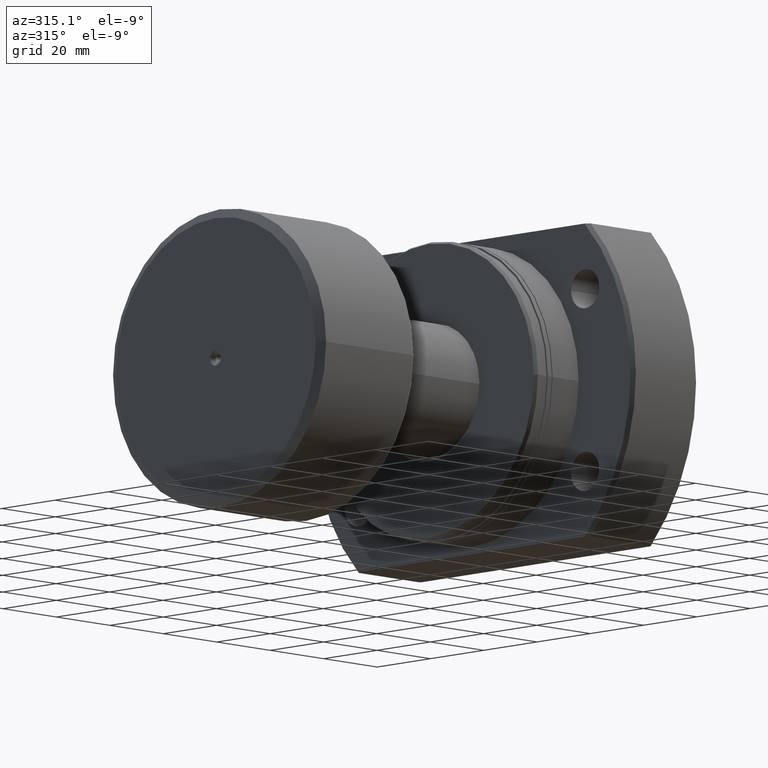
[diagram: clean part render]
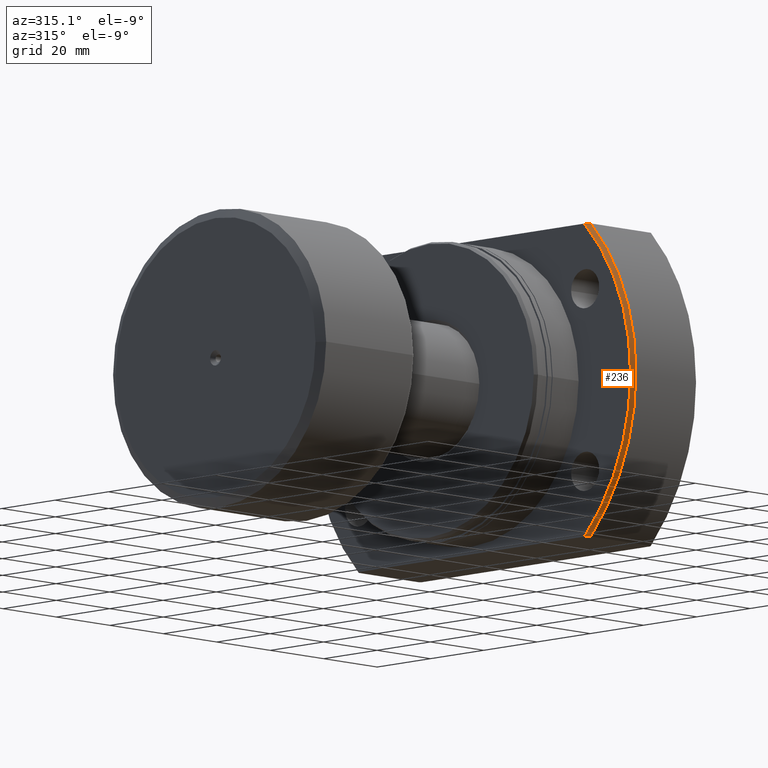
[diagram: same view with one face highlighted and labeled with its STEP entity id]
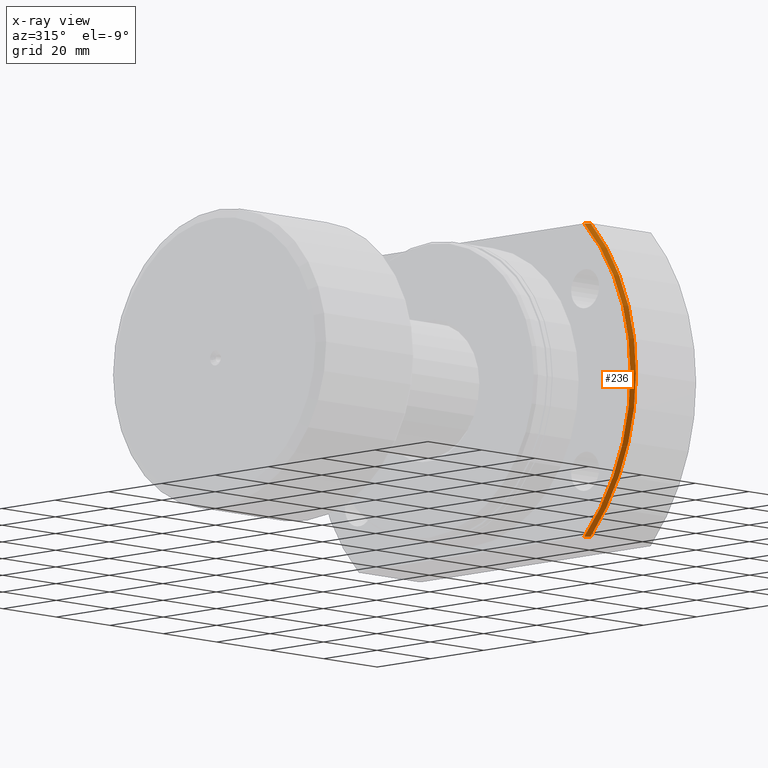
[diagram: x-ray of the same camera — body ghosted, the highlighted face saturated]
A machine part, auxiliary view. The second image highlights one B-rep face of the part: STEP entity #236.
The next image is the same camera in x-ray: the body ghosted, the highlighted face saturated — about 0% of this face is hidden behind the body in this view.
In plain terms, the highlighted conical surface has half-angle 45 deg.
Its self-contained STEP definition (entity closure, byte-faithful):
#44 = CARTESIAN_POINT ( 'NONE',  ( 16.53144698496875975, -42.61350898229063233, 42.00000000000000711 ) ) ;
#133 = DIRECTION ( 'NONE',  ( 1.000000000000000000, 4.782824563834189405E-17, -0.000000000000000000 ) ) ;
#213 = ORIENTED_EDGE ( 'NONE', *, *, #466, .T. ) ;
#216 = CONICAL_SURFACE ( 'NONE', #972, 59.49999999999994316, 0.7853981633974430610 ) ;
#236 = ADVANCED_FACE ( 'NONE', ( #1710 ), #216, .T. ) ;
#286 = CARTESIAN_POINT ( 'NONE',  ( 17.19999999999998153, -43.54595273960524793, -41.99999999999999289 ) ) ;
#363 = DIRECTION ( 'NONE',  ( 1.000000000000000000, 4.782824563834189405E-17, -0.000000000000000000 ) ) ;
#404 = CARTESIAN_POINT ( 'NONE',  ( 16.20000000000000284, 7.748175793411387157E-16, 0.000000000000000000 ) ) ;
#466 = EDGE_CURVE ( 'NONE', #1861, #597, #1996, .T. ) ;
#524 = CARTESIAN_POINT ( 'NONE',  ( 16.20000000000000639, -42.14558102577294108, 42.00000000000000711 ) ) ;
#597 = VERTEX_POINT ( 'NONE', #1368 ) ;
#616 = DIRECTION ( 'NONE',  ( -5.831003280594314730E-17, 1.000000000000000000, 0.000000000000000000 ) ) ;
#863 = CARTESIAN_POINT ( 'NONE',  ( 17.19999999999998508, 8.226458249794798825E-16, 0.000000000000000000 ) ) ;
#972 = AXIS2_PLACEMENT_3D ( 'NONE', #404, #133, #616 ) ;
#1062 = CARTESIAN_POINT ( 'NONE',  ( 16.53144698496875975, -42.61350898229062523, -42.00000000000000711 ) ) ;
#1070 = DIRECTION ( 'NONE',  ( -5.734623061080362048E-17, 1.000000000000000000, 0.000000000000000000 ) ) ;
#1137 = AXIS2_PLACEMENT_3D ( 'NONE', #3163, #1903, #2112 ) ;
#1342 = B_SPLINE_CURVE_WITH_KNOTS ( 'NONE', 3,
 ( #3103, #1062, #1746, #1763 ),
 .UNSPECIFIED., .F., .F.,
 ( 4, 4 ),
 ( 0.1630913217281462491, 0.1648252527028309933 ),
 .UNSPECIFIED. ) ;
#1368 = CARTESIAN_POINT ( 'NONE',  ( 16.20000000000000639, -42.14558102577294108, -42.00000000000000711 ) ) ;
#1441 = VERTEX_POINT ( 'NONE', #286 ) ;
#1459 = EDGE_CURVE ( 'NONE', #1861, #1880, #2590, .T. ) ;
#1496 = CARTESIAN_POINT ( 'NONE',  ( 16.20000000000000639, -42.14558102577294108, 42.00000000000000711 ) ) ;
#1567 = AXIS2_PLACEMENT_3D ( 'NONE', #863, #363, #1070 ) ;
#1673 = EDGE_CURVE ( 'NONE', #597, #1441, #1342, .T. ) ;
#1707 = ORIENTED_EDGE ( 'NONE', *, *, #1459, .F. ) ;
#1710 = FACE_OUTER_BOUND ( 'NONE', #2124, .T. ) ;
#1746 = CARTESIAN_POINT ( 'NONE',  ( 16.86482042041076923, -43.08027537375727434, -42.00000000000000711 ) ) ;
#1763 = CARTESIAN_POINT ( 'NONE',  ( 17.19999999999998153, -43.54595273960524793, -41.99999999999999289 ) ) ;
#1834 = CIRCLE ( 'NONE', #1567, 60.49999999999991473 ) ;
#1861 = VERTEX_POINT ( 'NONE', #1496 ) ;
#1880 = VERTEX_POINT ( 'NONE', #2961 ) ;
#1903 = DIRECTION ( 'NONE',  ( 1.000000000000000000, 4.782824563834189405E-17, -0.000000000000000000 ) ) ;
#1980 = EDGE_CURVE ( 'NONE', #1880, #1441, #1834, .T. ) ;
#1996 = CIRCLE ( 'NONE', #1137, 59.49999999999994316 ) ;
#2088 = ORIENTED_EDGE ( 'NONE', *, *, #1673, .T. ) ;
#2112 = DIRECTION ( 'NONE',  ( -5.831003280594314730E-17, 1.000000000000000000, 0.000000000000000000 ) ) ;
#2124 = EDGE_LOOP ( 'NONE', ( #1707, #213, #2088, #2413 ) ) ;
#2212 = CARTESIAN_POINT ( 'NONE',  ( 16.86482042041076923, -43.08027537375727434, 42.00000000000000711 ) ) ;
#2413 = ORIENTED_EDGE ( 'NONE', *, *, #1980, .F. ) ;
#2590 = B_SPLINE_CURVE_WITH_KNOTS ( 'NONE', 3,
 ( #524, #44, #2212, #3173 ),
 .UNSPECIFIED., .F., .F.,
 ( 4, 4 ),
 ( 0.1630913217281463323, 0.1648252527028310765 ),
 .UNSPECIFIED. ) ;
#2961 = CARTESIAN_POINT ( 'NONE',  ( 17.19999999999998153, -43.54595273960523372, 42.00000000000000711 ) ) ;
#3103 = CARTESIAN_POINT ( 'NONE',  ( 16.20000000000000639, -42.14558102577294108, -42.00000000000000711 ) ) ;
#3163 = CARTESIAN_POINT ( 'NONE',  ( 16.20000000000000284, 7.748175793411387157E-16, 0.000000000000000000 ) ) ;
#3173 = CARTESIAN_POINT ( 'NONE',  ( 17.19999999999998153, -43.54595273960523372, 42.00000000000000711 ) ) ;